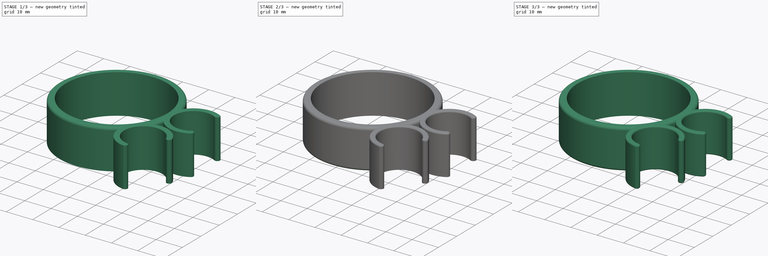
[diagram: build sequence overview — one tinted view per stage of 3, left to right]
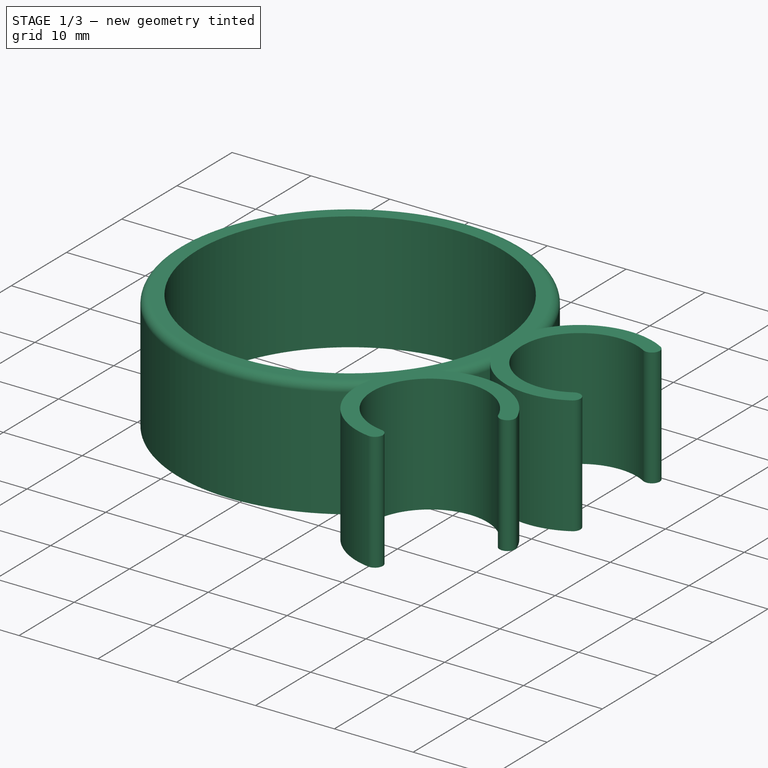
[diagram: stage 1 of 3 — iso view after this stage's code; geometry added in this stage tinted green]
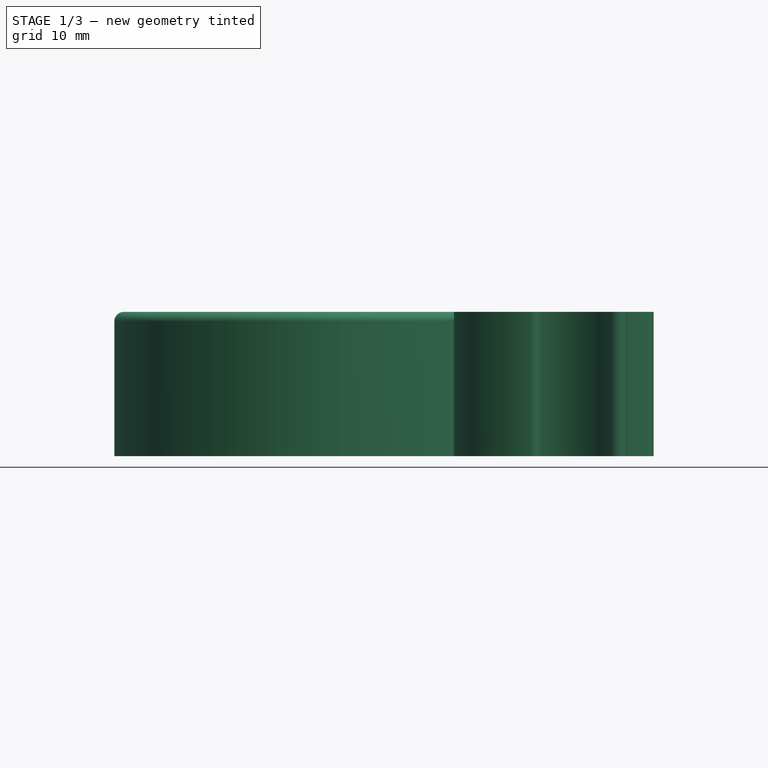
[diagram: stage 1 of 3 — front view after this stage's code; geometry added in this stage tinted green]
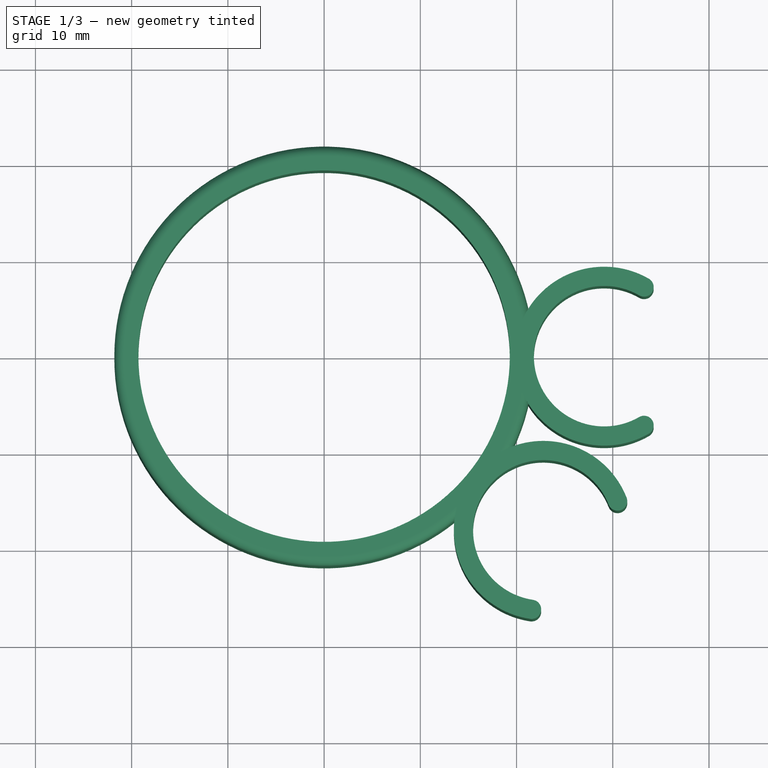
[diagram: stage 1 of 3 — top view after this stage's code; geometry added in this stage tinted green]
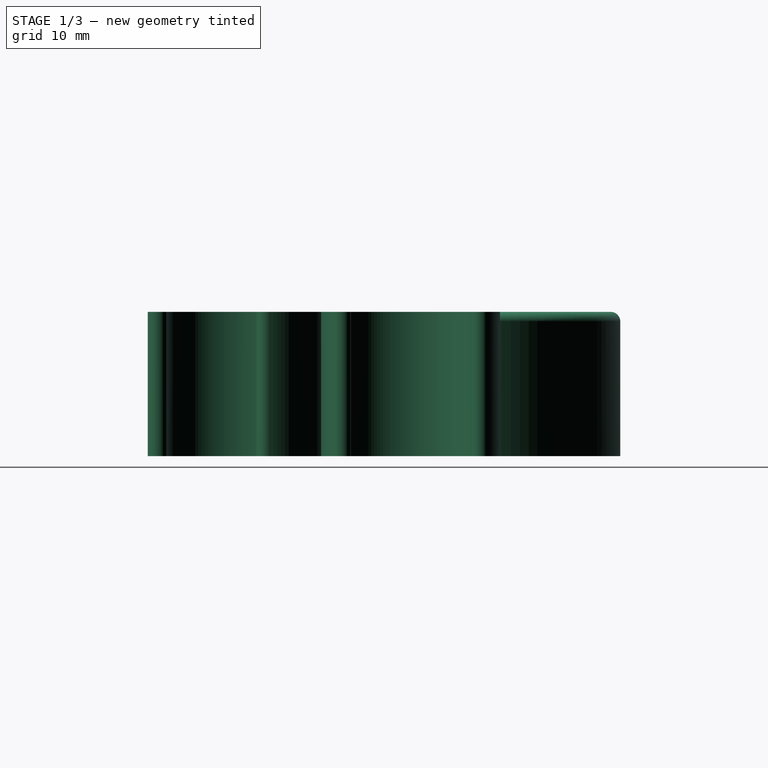
[diagram: stage 1 of 3 — right view after this stage's code; geometry added in this stage tinted green]
FCSTD DOCUMENT  (FreeCAD 0.16R6712 (Git))
Label: Porte baguettes
License: All rights reserved
LicenseURL: http://en.wikipedia.org/wiki/All_rights_reserved
objects: PartDesign::Fillet×6, Sketcher::SketchObject×1, PartDesign::Pad×1
note: 9 computed .brp shape members not serialized (recipe doc carries the construction recipe); baked Part::Feature solids carry a one-line shape summary decoded from their .brp

FEATURE [Sketcher::SketchObject] Sketch
  sketch-geometry (22):
    g0: Circle CenterX=0 CenterY=0 CenterZ=0 NormalX=0 NormalY=0 NormalZ=1 Radius=19.3
    g1: Circle CenterX=0 CenterY=0 CenterZ=0 NormalX=0 NormalY=0 NormalZ=1 Radius=21.8
    g2: LineSegment [constr] StartX=-21.8 StartY=47.2255 StartZ=0 EndX=-21.8 EndY=-46.4257 EndZ=0
    g3: ArcOfCircle CenterX=29.1 CenterY=0 CenterZ=0 NormalX=0 NormalY=0 NormalZ=1 Radius=7.3 StartAngle=1.0472 EndAngle=5.23599
    g4: ArcOfCircle CenterX=29.1 CenterY=0 CenterZ=0 NormalX=0 NormalY=0 NormalZ=1 Radius=9.3 StartAngle=1.0472 EndAngle=5.23599
    g5: LineSegment [constr] StartX=21.8 StartY=16.6267 StartZ=0 EndX=21.8 EndY=-8.17844 EndZ=0
    g6: LineSegment [constr] StartX=19.8 StartY=20.4547 StartZ=0 EndX=19.8 EndY=-30.4141 EndZ=0
    g7: LineSegment [constr] StartX=-19.3 StartY=46.7267 StartZ=0 EndX=-19.3 EndY=-46.0046 EndZ=0
    g8: ArcOfCircle CenterX=22.7824 CenterY=-18.1045 CenterZ=0 NormalX=0 NormalY=0 NormalZ=1 Radius=7.3 StartAngle=0.375713 EndAngle=4.5645
    g9: ArcOfCircle CenterX=22.7824 CenterY=-18.1045 CenterZ=0 NormalX=0 NormalY=0 NormalZ=1 Radius=9.3 StartAngle=0.375713 EndAngle=4.5645
    g10: LineSegment [constr] StartX=22.7824 StartY=-18.1045 StartZ=0 EndX=31.4336 EndY=-14.692 EndZ=0
    g11: LineSegment [constr] StartX=22.7824 StartY=-18.1045 StartZ=0 EndX=21.412 EndY=-27.303 EndZ=0
    g12: LineSegment [constr] StartX=15.4824 StartY=-19.3313 StartZ=0 EndX=15.4824 EndY=-59.4628 EndZ=0
    g13: LineSegment [constr] StartX=13.4824 StartY=-29.7907 StartZ=0 EndX=13.4824 EndY=-58.4737 EndZ=0
    g14: LineSegment [constr] StartX=0.0110192 StartY=-0.0087567 StartZ=0 EndX=49.8145 EndY=-39.5862 EndZ=0
    g15: LineSegment [constr] StartX=20.0906 StartY=0 StartZ=0 EndX=68.8517 EndY=0 EndZ=0
    g16: ArcOfCircle CenterX=30.5034 CenterY=-15.059 CenterZ=0 NormalX=0 NormalY=0 NormalZ=1 Radius=1 StartAngle=3.51731 EndAngle=6.6589
    g17: ArcOfCircle CenterX=21.5594 CenterY=-26.3139 CenterZ=0 NormalX=0 NormalY=0 NormalZ=1 Radius=1 StartAngle=4.5645 EndAngle=7.7061
    g18: LineSegment [constr] StartX=32.75 StartY=6.32199 StartZ=0 EndX=33.75 EndY=8.05404 EndZ=0
    g19: LineSegment [constr] StartX=33.75 StartY=-8.05404 StartZ=0 EndX=32.75 EndY=-6.32199 EndZ=0
    g20: ArcOfCircle CenterX=33.25 CenterY=7.18801 CenterZ=0 NormalX=0 NormalY=0 NormalZ=1 Radius=1 StartAngle=4.18879 EndAngle=7.33038
    g21: ArcOfCircle CenterX=33.25 CenterY=-7.18801 CenterZ=0 NormalX=0 NormalY=0 NormalZ=1 Radius=1 StartAngle=5.23599 EndAngle=8.37758
  constraints (58):
    c: Coincident(g0,g-1)
    c: Radius(g0) = 19.3
    c: Coincident(g1,g-1)
    c: Vertical(g2)
    c: Symmetric(g3,g3,g-1)
    c: Angle(g3) = 4.18879
    c: Radius(g3) = 7.3
    c: Angle(g4) = 4.18879
    c: Symmetric(g4,g4,g-1)
    c: Vertical(g5)
    c: Vertical(g6)
    c: Tangent(g5,g3)
    c: Tangent(g4,g6)
    c: DistanceX(g6,g5) = 2
    c: Coincident(g4,g3)
    c: Vertical(g7)
    c: Tangent(g7,g0)
    c: DistanceX(g2,g7) = 2.5
    c: Radius(g8) = 7.3
    c: Angle(g8) = 4.18879
    c: Coincident(g9,g8)
    c: Coincident(g10,g8)
    c: PointOnObject(g8,g10)
    c: PointOnObject(g9,g10)
    c: Coincident(g11,g8)
    c: PointOnObject(g8,g11)
    c: PointOnObject(g9,g11)
    c: Vertical(g12)
    c: Vertical(g13)
    c: Tangent(g12,g8)
    c: Tangent(g13,g9)
    c: DistanceX(g13,g12) = 2
    c: Perpendicular(g1,g14)
    c: PointOnObject(g8,g14)
    c: Symmetric(g8,g8,g14)
    c: Horizontal(g15)
    c: Perpendicular(g1,g15)
    c: Tangent(g1,g2)
    c: Coincident(g11,g9)
    c: Coincident(g10,g9)
    c: PointOnObject(g16,g10)
    c: Coincident(g16,g8)
    c: Coincident(g16,g9)
    c: PointOnObject(g17,g11)
    c: Coincident(g17,g8)
    c: Coincident(g17,g9)
    c: Coincident(g18,g3)
    c: Coincident(g18,g4)
    c: Coincident(g19,g4)
    c: PointOnObject(g20,g18)
    c: Coincident(g20,g3)
    c: Coincident(g20,g4)
    c: Coincident(g19,g3)
    c: PointOnObject(g21,g19)
    c: Coincident(g21,g3)
    c: Coincident(g21,g4)
    c: Tangent(g8,g1)
    c: Tangent(g1,g3)
FEATURE [PartDesign::Pad] Pad
  Length = 15
  Length2 = 100
  Sketch = -> Sketch
  Type = 0
FEATURE [PartDesign::Fillet] Fillet
  Base = -> Pad [Edge3]
  Radius = 1
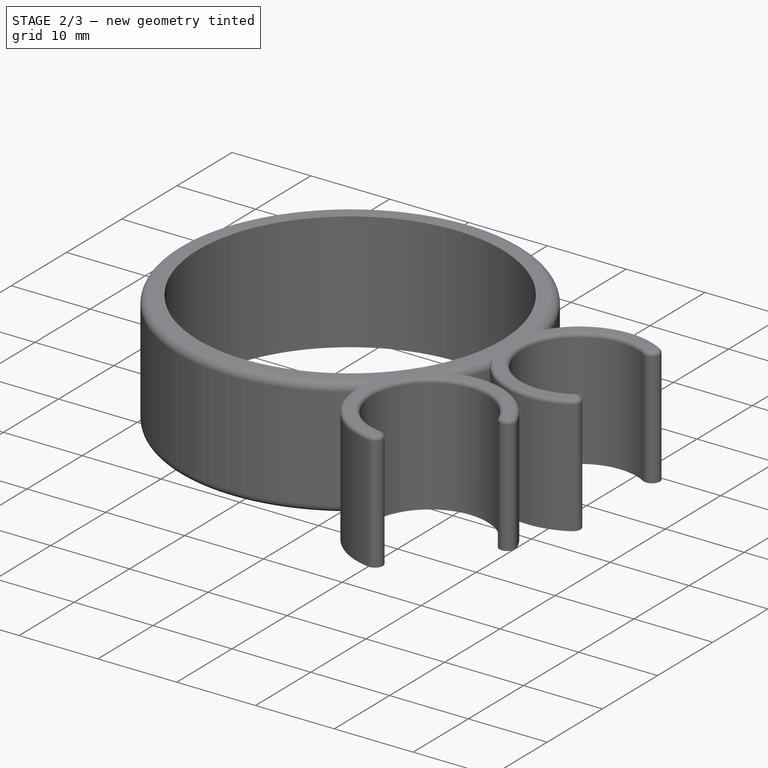
[diagram: stage 2 of 3 — iso view after this stage's code; geometry added in this stage tinted green]
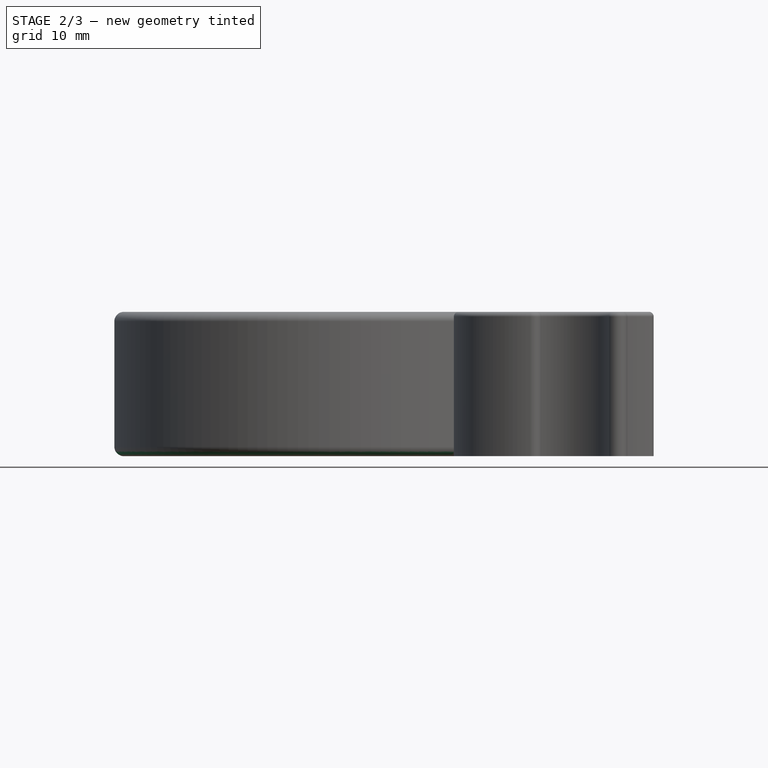
[diagram: stage 2 of 3 — front view after this stage's code; geometry added in this stage tinted green]
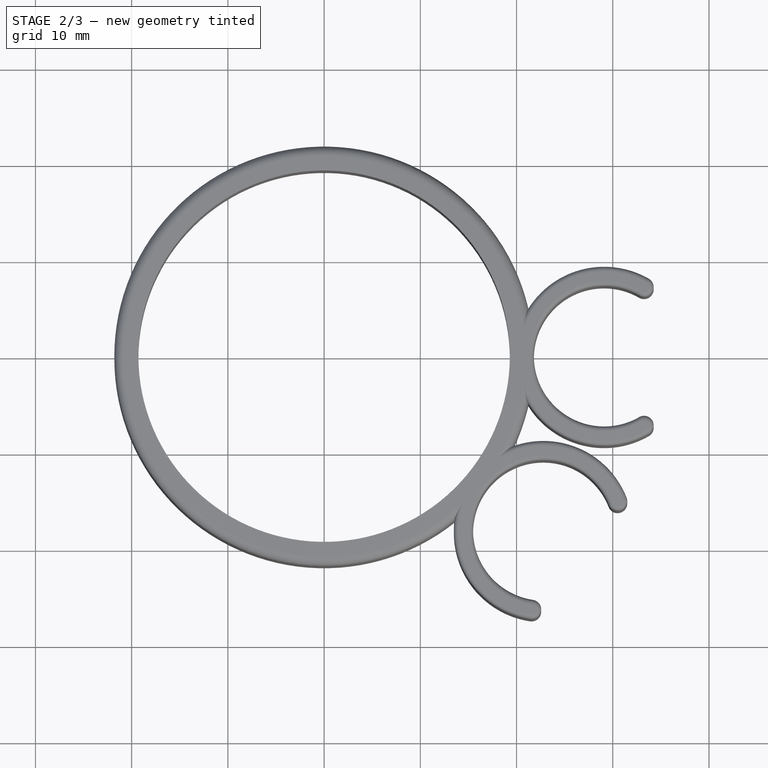
[diagram: stage 2 of 3 — top view after this stage's code; geometry added in this stage tinted green]
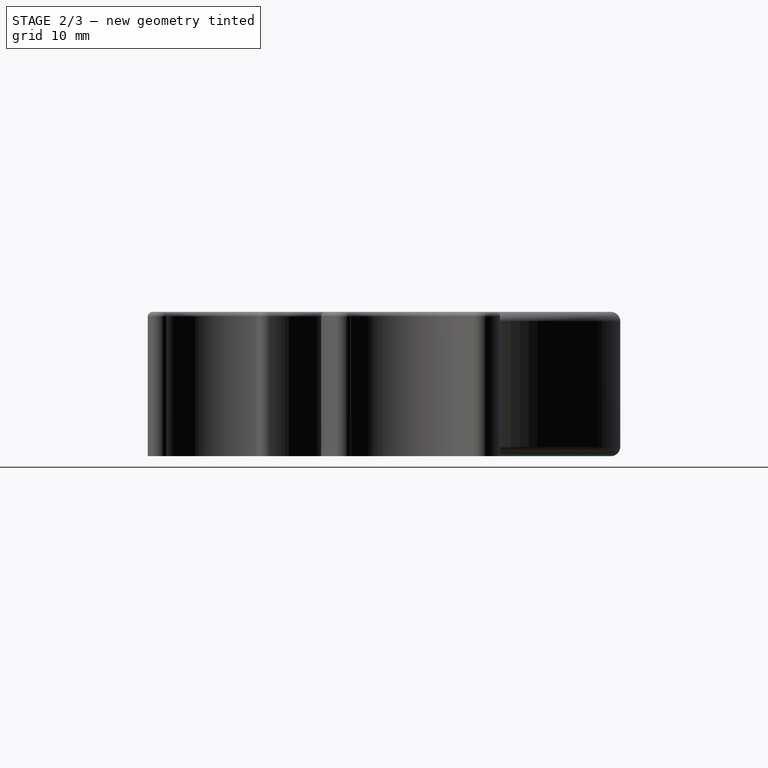
[diagram: stage 2 of 3 — right view after this stage's code; geometry added in this stage tinted green]
FEATURE [PartDesign::Fillet] Fillet001
  Base = -> Fillet [Edge20]
  Radius = 0.5
FEATURE [PartDesign::Fillet] Fillet002
  Base = -> Fillet001 [Edge40]
  Radius = 0.5
FEATURE [PartDesign::Fillet] Fillet003
  Base = -> Fillet002 [Edge43]
  Radius = 1
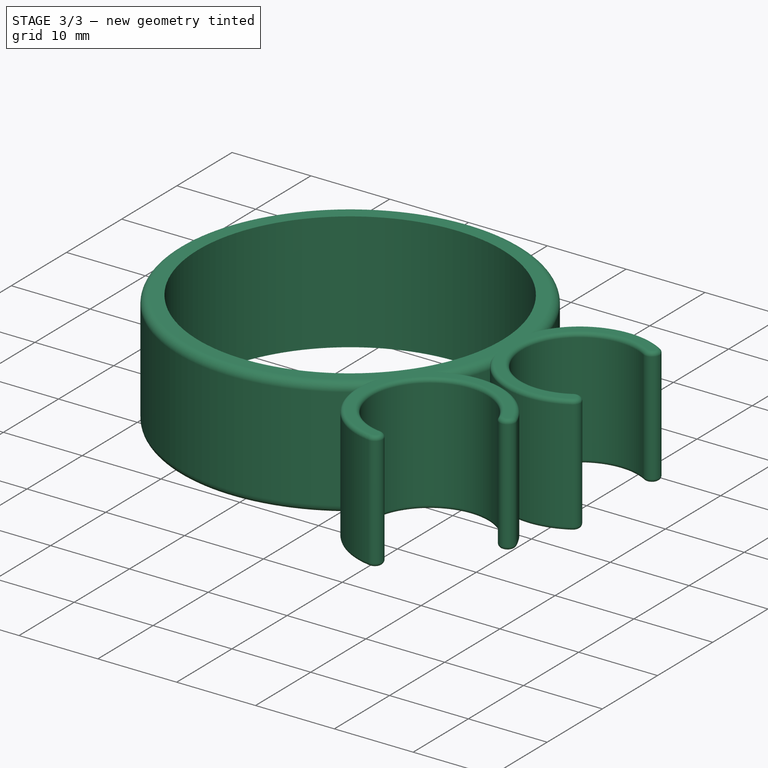
[diagram: stage 3 of 3 — iso view after this stage's code; geometry added in this stage tinted green]
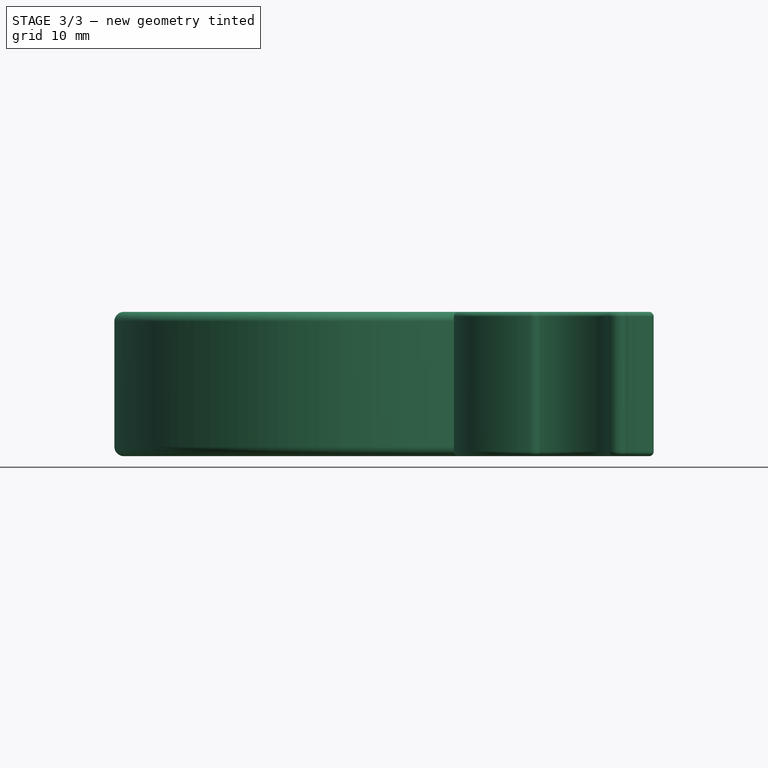
[diagram: stage 3 of 3 — front view after this stage's code; geometry added in this stage tinted green]
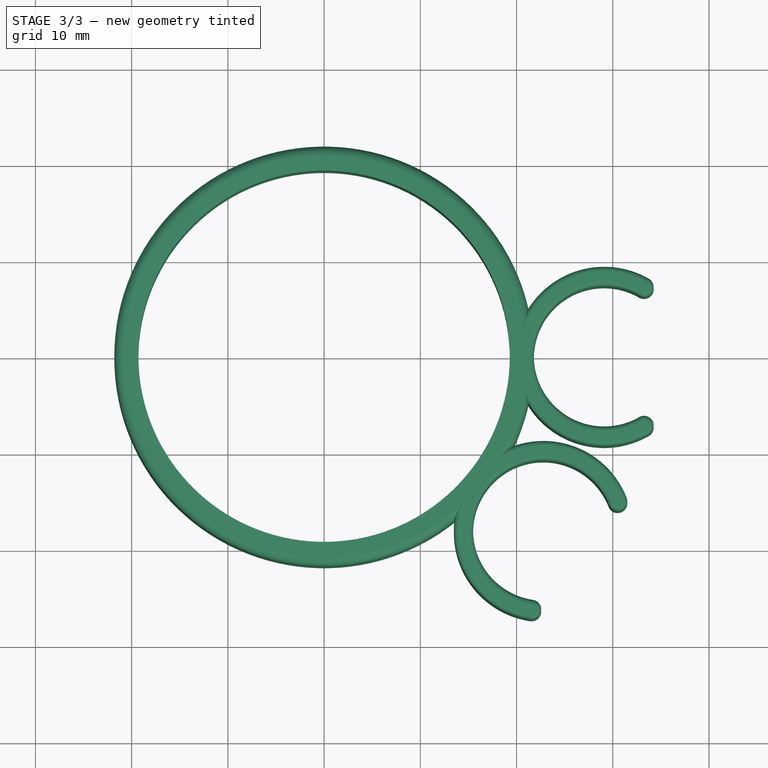
[diagram: stage 3 of 3 — top view after this stage's code; geometry added in this stage tinted green]
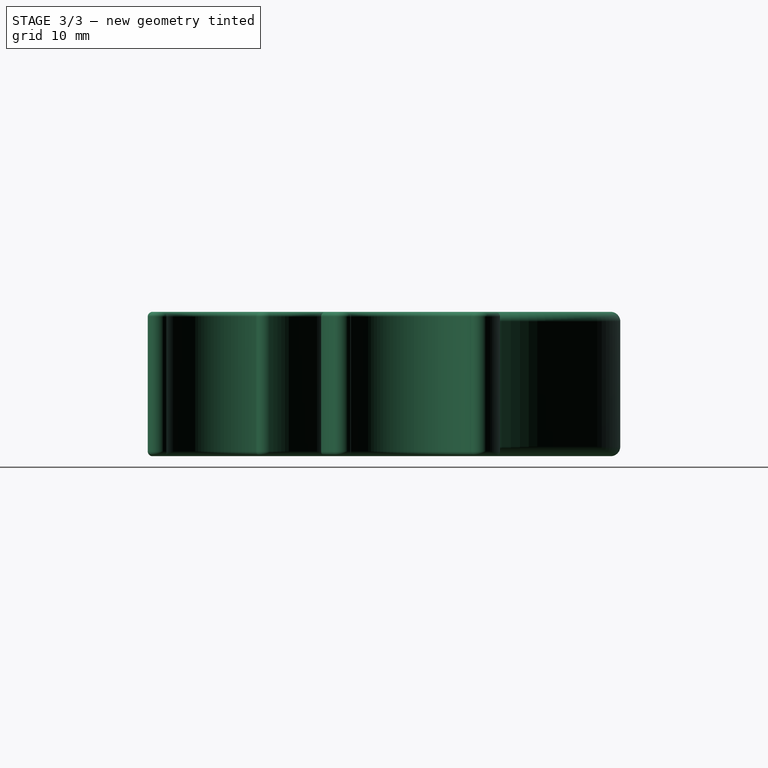
[diagram: stage 3 of 3 — right view after this stage's code; geometry added in this stage tinted green]
FEATURE [PartDesign::Fillet] Fillet004
  Base = -> Fillet003 [Edge42]
  Radius = 0.5
FEATURE [PartDesign::Fillet] Fillet005
  Base = -> Fillet004 [Edge50]
  Radius = 0.5
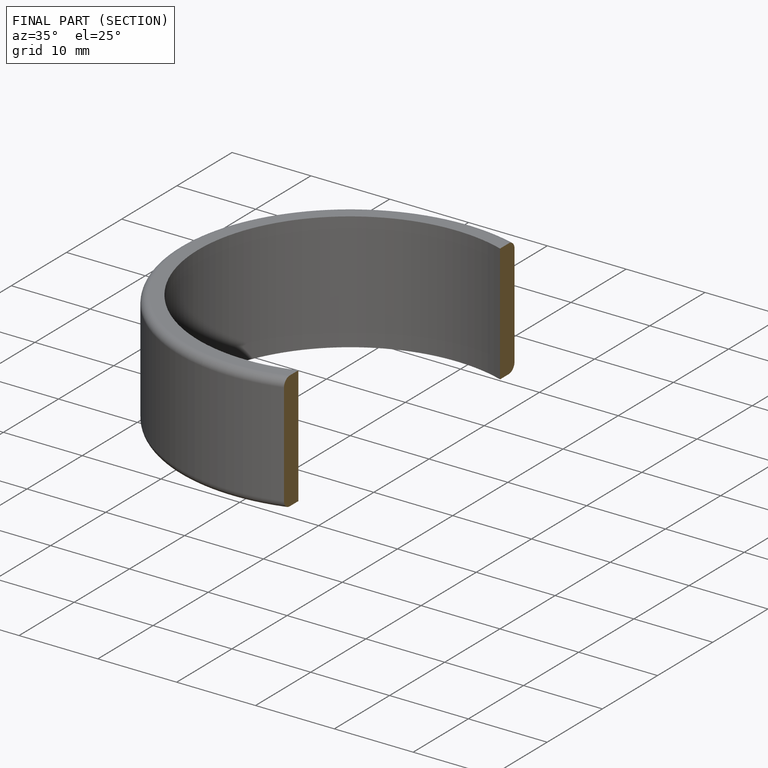
[diagram: finished part — half-section view (interior)]
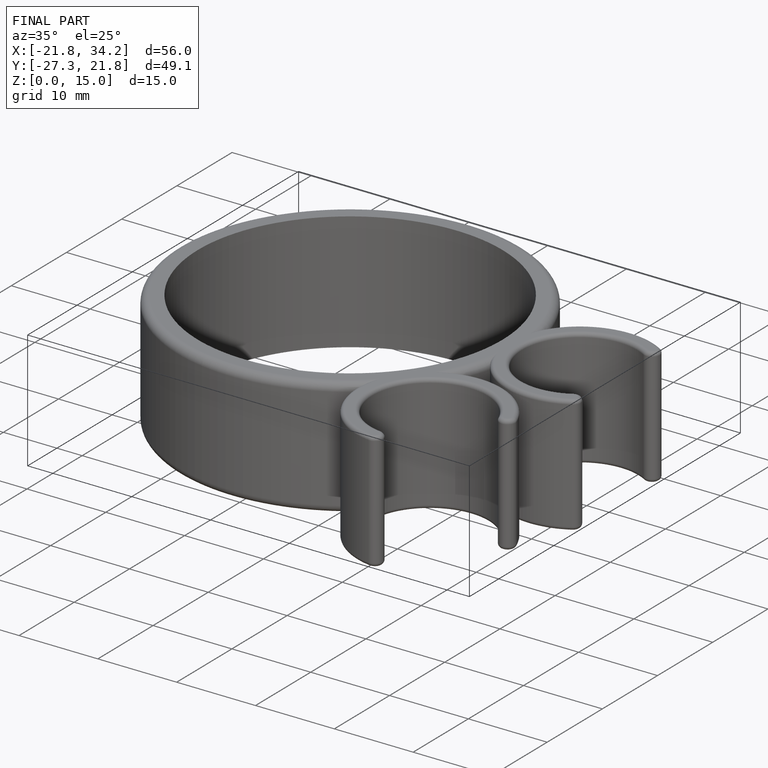
[diagram: finished part — iso view with bounding-box wireframe]
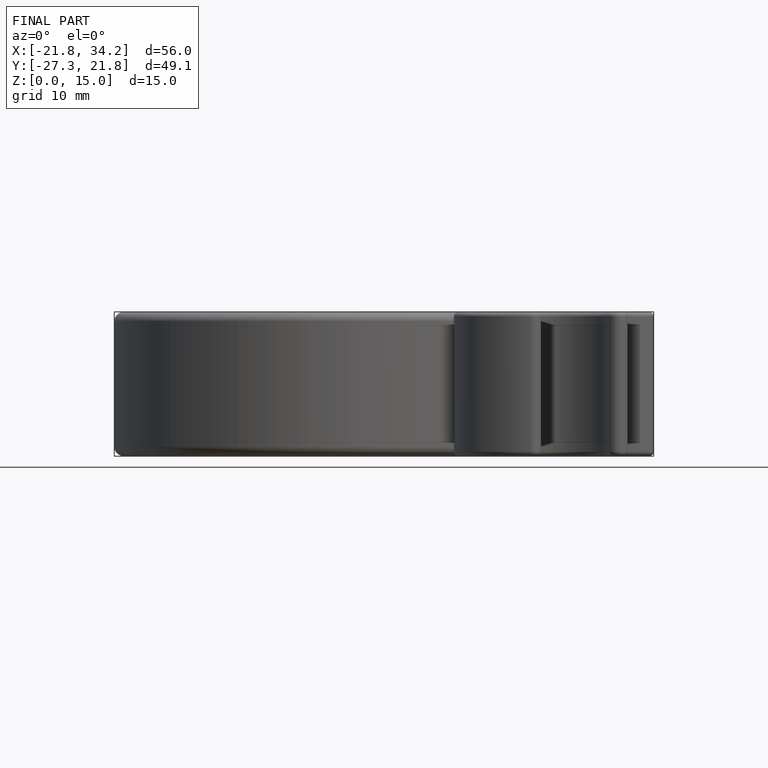
[diagram: finished part — front view with bounding-box wireframe]
